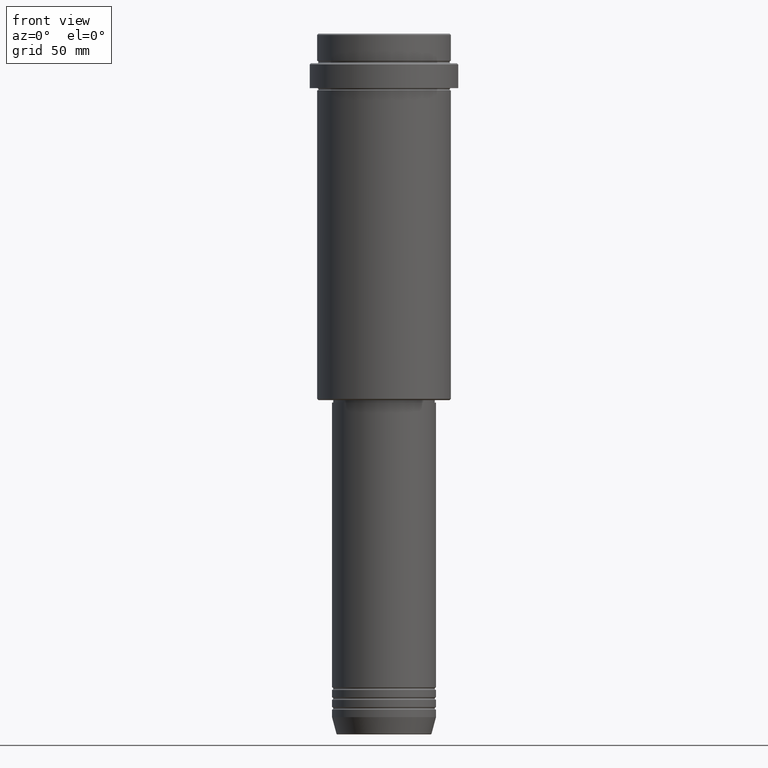
[diagram: clean part render]
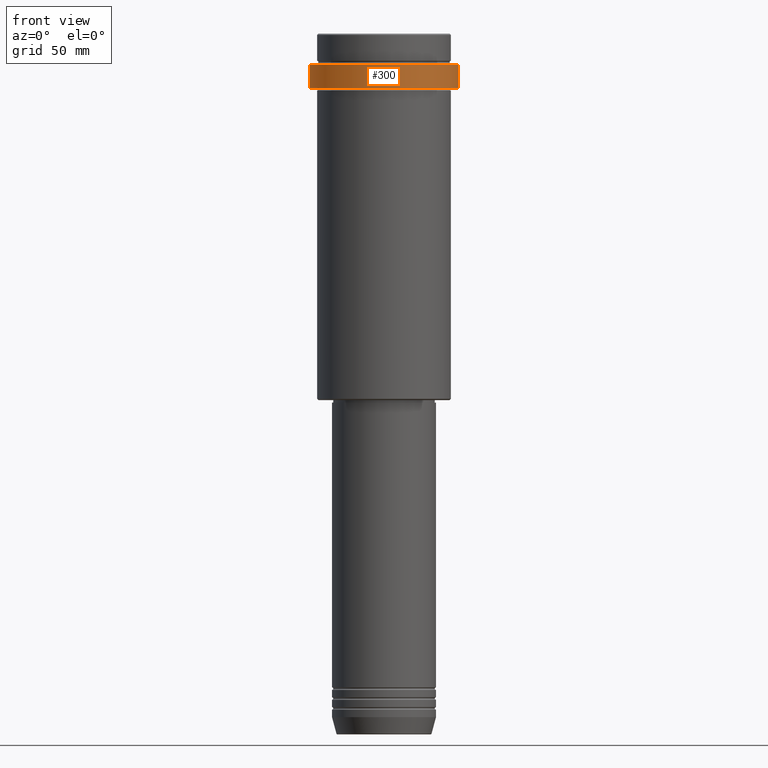
[diagram: same view with one face highlighted and labeled with its STEP entity id]
A machine part, front view. The second image highlights one B-rep face of the part: STEP entity #300.
In plain terms, the highlighted cylindrical surface (partial cylindrical patch) has radius 30 mm, axis along (-0, -0, 1).
Its self-contained STEP definition (entity closure, byte-faithful):
#46 = ORIENTED_EDGE ( 'NONE', *, *, #580, .T. ) ;
#73 = CARTESIAN_POINT ( 'NONE',  ( 30.00000000000000000, 0.000000000000000000, -12.49999999999998224 ) ) ;
#75 = CARTESIAN_POINT ( 'NONE',  ( -30.00000000000000000, 3.673940397442059178E-15, 0.000000000000000000 ) ) ;
#97 = AXIS2_PLACEMENT_3D ( 'NONE', #914, #1332, #1146 ) ;
#194 = CIRCLE ( 'NONE', #386, 29.99999999999999645 ) ;
#227 = VERTEX_POINT ( 'NONE', #1082 ) ;
#251 = CARTESIAN_POINT ( 'NONE',  ( 0.000000000000000000, 0.000000000000000000, -12.49999999999998224 ) ) ;
#271 = VERTEX_POINT ( 'NONE', #535 ) ;
#300 = ADVANCED_FACE ( 'NONE', ( #1038 ), #1123, .T. ) ;
#304 = LINE ( 'NONE', #1387, #1375 ) ;
#347 = CIRCLE ( 'NONE', #547, 30.00000000000000000 ) ;
#356 = ORIENTED_EDGE ( 'NONE', *, *, #568, .F. ) ;
#386 = AXIS2_PLACEMENT_3D ( 'NONE', #741, #960, #935 ) ;
#395 = DIRECTION ( 'NONE',  ( -0.000000000000000000, -0.000000000000000000, 1.000000000000000000 ) ) ;
#472 = DIRECTION ( 'NONE',  ( 0.000000000000000000, 0.000000000000000000, -1.000000000000000000 ) ) ;
#490 = LINE ( 'NONE', #75, #688 ) ;
#513 = DIRECTION ( 'NONE',  ( -0.000000000000000000, -0.000000000000000000, 1.000000000000000000 ) ) ;
#535 = CARTESIAN_POINT ( 'NONE',  ( -30.00000000000000000, 3.673940397442059178E-15, -12.49999999999998224 ) ) ;
#547 = AXIS2_PLACEMENT_3D ( 'NONE', #251, #472, #593 ) ;
#563 = ORIENTED_EDGE ( 'NONE', *, *, #734, .T. ) ;
#568 = EDGE_CURVE ( 'NONE', #1124, #271, #490, .T. ) ;
#580 = EDGE_CURVE ( 'NONE', #1124, #227, #194, .T. ) ;
#593 = DIRECTION ( 'NONE',  ( 1.000000000000000000, 0.000000000000000000, 0.000000000000000000 ) ) ;
#632 = ORIENTED_EDGE ( 'NONE', *, *, #984, .T. ) ;
#688 = VECTOR ( 'NONE', #513, 1000.000000000000000 ) ;
#734 = EDGE_CURVE ( 'NONE', #1254, #271, #347, .T. ) ;
#741 = CARTESIAN_POINT ( 'NONE',  ( 0.000000000000000000, 0.000000000000000000, -22.00000000000000355 ) ) ;
#857 = EDGE_LOOP ( 'NONE', ( #356, #46, #632, #563 ) ) ;
#914 = CARTESIAN_POINT ( 'NONE',  ( 0.000000000000000000, 0.000000000000000000, 0.000000000000000000 ) ) ;
#935 = DIRECTION ( 'NONE',  ( 1.000000000000000000, 0.000000000000000000, 0.000000000000000000 ) ) ;
#960 = DIRECTION ( 'NONE',  ( -0.000000000000000000, -0.000000000000000000, 1.000000000000000000 ) ) ;
#984 = EDGE_CURVE ( 'NONE', #227, #1254, #304, .T. ) ;
#1038 = FACE_OUTER_BOUND ( 'NONE', #857, .T. ) ;
#1082 = CARTESIAN_POINT ( 'NONE',  ( 29.99999999999999645, 0.000000000000000000, -22.00000000000000355 ) ) ;
#1123 = CYLINDRICAL_SURFACE ( 'NONE', #97, 30.00000000000000000 ) ;
#1124 = VERTEX_POINT ( 'NONE', #1359 ) ;
#1146 = DIRECTION ( 'NONE',  ( 1.000000000000000000, 0.000000000000000000, 0.000000000000000000 ) ) ;
#1254 = VERTEX_POINT ( 'NONE', #73 ) ;
#1332 = DIRECTION ( 'NONE',  ( -0.000000000000000000, -0.000000000000000000, 1.000000000000000000 ) ) ;
#1359 = CARTESIAN_POINT ( 'NONE',  ( -29.99999999999999645, 3.673940397442058389E-15, -22.00000000000000355 ) ) ;
#1375 = VECTOR ( 'NONE', #395, 1000.000000000000000 ) ;
#1387 = CARTESIAN_POINT ( 'NONE',  ( 30.00000000000000000, 0.000000000000000000, 0.000000000000000000 ) ) ;